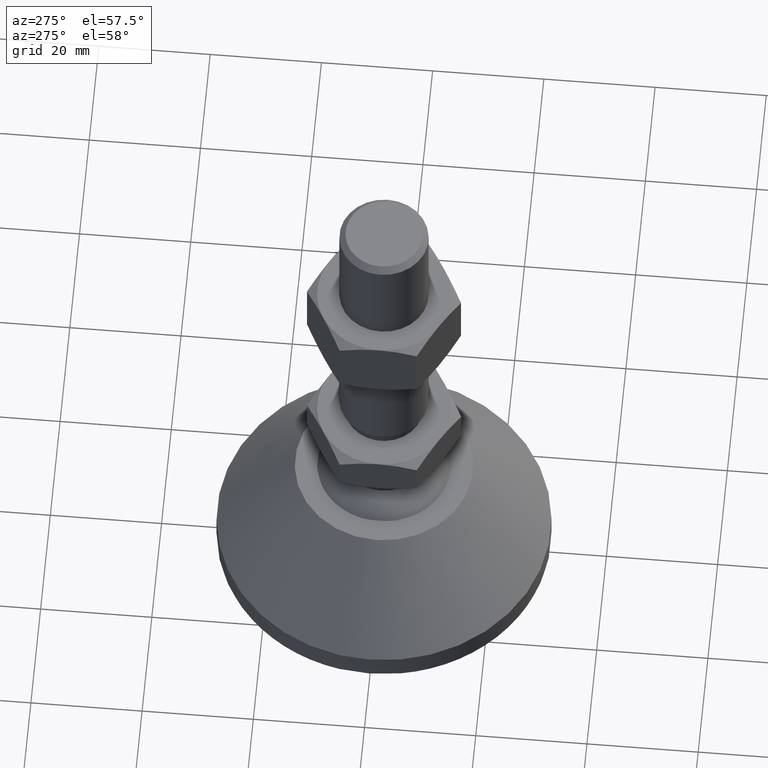
[diagram: clean part render]
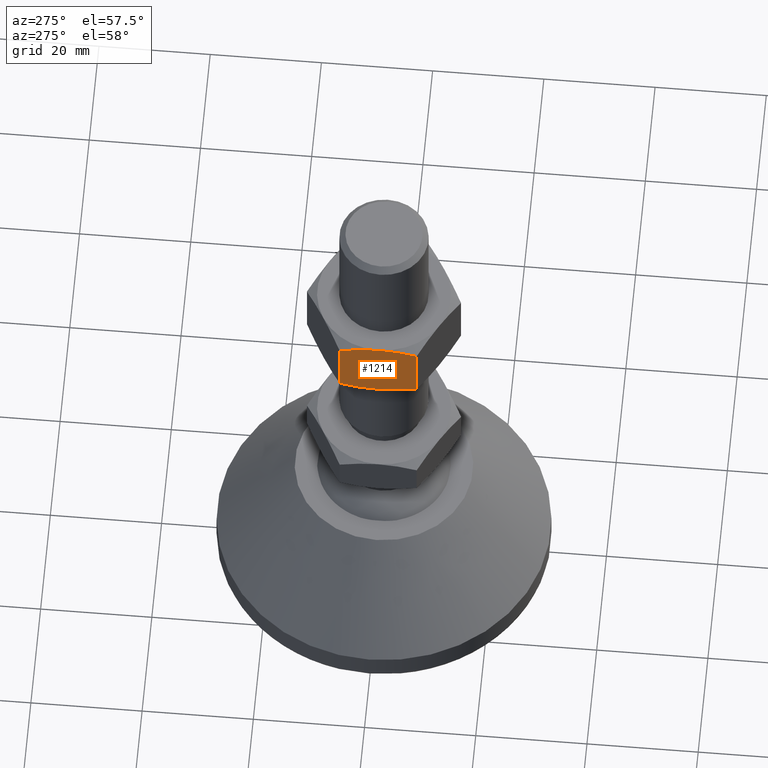
[diagram: same view with one face highlighted and labeled with its STEP entity id]
A machine part, auxiliary view. The second image highlights one B-rep face of the part: STEP entity #1214.
In plain terms, the highlighted planar face has unit normal (-1, 0, 0).
Its self-contained STEP definition (entity closure, byte-faithful):
#548=CARTESIAN_POINT('',(-11.999999999999886,4.359870E-015,67.000000333786488));
#549=VERTEX_POINT('',#548);
#610=CARTESIAN_POINT('',(-11.999999999999886,6.928203230275496,68.071797119797111));
#611=VERTEX_POINT('',#610);
#612=CARTESIAN_POINT('',(-11.999999999999886,4.231218E-015,67.000000333786488));
#613=CARTESIAN_POINT('',(-11.999999999999886,0.525552683232046,67.000000333786488));
#614=CARTESIAN_POINT('',(-11.999999999995680,1.615955297633577,67.041620584445354));
#615=CARTESIAN_POINT('',(-12.000000000002842,3.946936987729611,67.309900270950607));
#616=CARTESIAN_POINT('',(-11.999999999999886,5.723738646606782,67.724098138708541));
#617=CARTESIAN_POINT('',(-11.999999999999886,6.928203230275496,68.071797119797111));
#618=B_SPLINE_CURVE_WITH_KNOTS('',3,(#612,#613,#614,#615,#616,#617),.UNSPECIFIED.,.F.,.U.,(4,1,1,4),(0.0,1.577025754071725,3.270698046410839,7.034327279472071),.UNSPECIFIED.);
#619=EDGE_CURVE('',#549,#611,#618,.T.);
#649=CARTESIAN_POINT('',(-11.999999999999886,-6.928203230275497,68.071797119797111));
#650=VERTEX_POINT('',#649);
#660=CARTESIAN_POINT('',(-11.999999999999886,2.761691E-015,67.000000333786488));
#661=CARTESIAN_POINT('',(-11.999999999999886,-0.525552683232040,67.000000333786488));
#662=CARTESIAN_POINT('',(-11.999999999995680,-1.615955297633569,67.041620584445354));
#663=CARTESIAN_POINT('',(-12.000000000002842,-3.946936987729609,67.309900270950607));
#664=CARTESIAN_POINT('',(-11.999999999999886,-5.723738646606780,67.724098138708541));
#665=CARTESIAN_POINT('',(-11.999999999999886,-6.928203230275496,68.071797119797111));
#666=B_SPLINE_CURVE_WITH_KNOTS('',3,(#660,#661,#662,#663,#664,#665),.UNSPECIFIED.,.F.,.U.,(4,1,1,4),(0.0,1.577025754071727,3.270698046410835,7.034327279472079),.UNSPECIFIED.);
#667=EDGE_CURVE('',#549,#650,#666,.T.);
#838=CARTESIAN_POINT('',(-11.999999999999886,4.359896E-015,80.000000333786488));
#839=VERTEX_POINT('',#838);
#840=CARTESIAN_POINT('',(-11.999999999999886,-6.928203230275497,78.928203500565019));
#841=VERTEX_POINT('',#840);
#842=CARTESIAN_POINT('',(-11.999999999999886,2.715625E-015,80.000000333786488));
#843=CARTESIAN_POINT('',(-11.999999999999886,-0.525552683246455,80.000000333786488));
#844=CARTESIAN_POINT('',(-11.999999999995680,-1.615955297829928,79.958380081279756));
#845=CARTESIAN_POINT('',(-12.000000000002842,-3.946936989777397,79.690100382706419));
#846=CARTESIAN_POINT('',(-11.999999999999886,-5.723738647963502,79.275902496577487));
#847=CARTESIAN_POINT('',(-11.999999999999886,-6.928203230275496,78.928203500565019));
#848=B_SPLINE_CURVE_WITH_KNOTS('',3,(#842,#843,#844,#845,#846,#847),.UNSPECIFIED.,.F.,.U.,(4,1,1,4),(0.0,1.577025754147251,3.270698046914398,7.034327288704247),.UNSPECIFIED.);
#849=EDGE_CURVE('',#839,#841,#848,.T.);
#895=CARTESIAN_POINT('',(-11.999999999999886,6.928203230275495,78.928203500565019));
#896=VERTEX_POINT('',#895);
#906=CARTESIAN_POINT('',(-11.999999999999886,6.928203230275496,78.928203500565019));
#907=CARTESIAN_POINT('',(-11.999999999999886,5.747028730245809,79.269179228541589));
#908=CARTESIAN_POINT('',(-11.999999999999886,3.959397579584187,79.687853448834289));
#909=CARTESIAN_POINT('',(-11.999999999999886,1.628476989079892,79.958430474638249));
#910=CARTESIAN_POINT('',(-11.999999999999886,0.513772292279698,80.000000333786488));
#911=CARTESIAN_POINT('',(-11.999999999999886,4.185152E-015,80.000000333786488));
#912=B_SPLINE_CURVE_WITH_KNOTS('',3,(#906,#907,#908,#909,#910,#911),.UNSPECIFIED.,.F.,.U.,(4,1,1,4),(0.0,3.690730923010011,5.492665286171805,7.034325219844421),.UNSPECIFIED.);
#913=EDGE_CURVE('',#896,#839,#912,.T.);
#1183=CARTESIAN_POINT('',(-11.999999999999886,6.928203230275496,68.071797119797154));
#1184=DIRECTION('',(0.0,0.0,1.0));
#1185=VECTOR('',#1184,10.856406380767808);
#1186=LINE('',#1183,#1185);
#1187=EDGE_CURVE('',#611,#896,#1186,.T.);
#1196=CARTESIAN_POINT('',(-11.999999999999886,6.928203230275496,67.000000333786488));
#1197=DIRECTION('',(-1.0,0.0,0.0));
#1198=DIRECTION('',(0.0,-1.0,0.0));
#1199=AXIS2_PLACEMENT_3D('',#1196,#1197,#1198);
#1200=PLANE('',#1199);
#1201=ORIENTED_EDGE('',*,*,#667,.T.);
#1202=CARTESIAN_POINT('',(-11.999999999999886,-6.928203230275494,68.071797119797154));
#1203=DIRECTION('',(0.0,0.0,1.0));
#1204=VECTOR('',#1203,10.856406380767808);
#1205=LINE('',#1202,#1204);
#1206=EDGE_CURVE('',#650,#841,#1205,.T.);
#1207=ORIENTED_EDGE('',*,*,#1206,.T.);
#1208=ORIENTED_EDGE('',*,*,#849,.F.);
#1209=ORIENTED_EDGE('',*,*,#913,.F.);
#1210=ORIENTED_EDGE('',*,*,#1187,.F.);
#1211=ORIENTED_EDGE('',*,*,#619,.F.);
#1212=EDGE_LOOP('',(#1201,#1207,#1208,#1209,#1210,#1211));
#1213=FACE_OUTER_BOUND('',#1212,.T.);
#1214=ADVANCED_FACE('',(#1213),#1200,.T.);